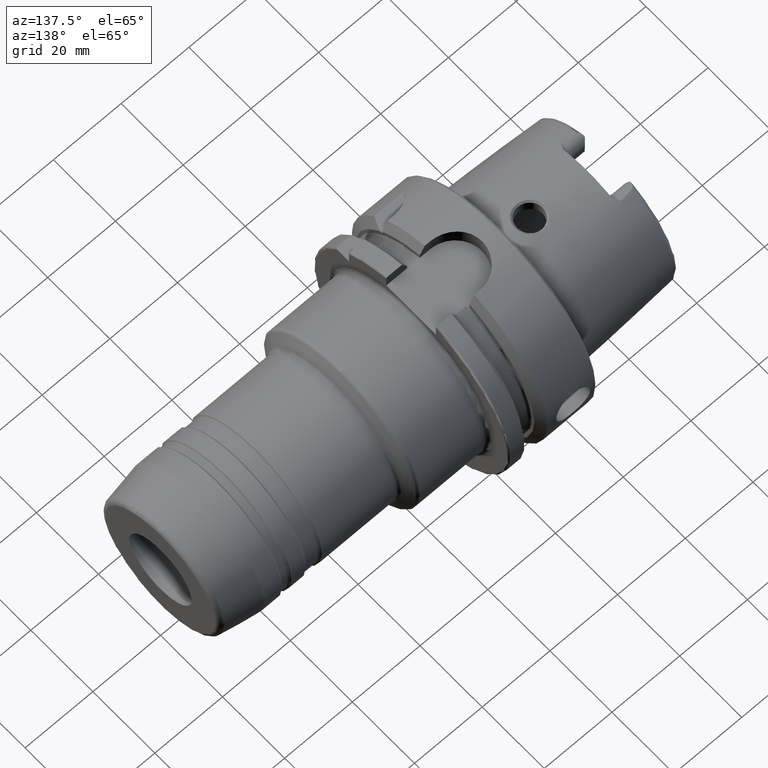
[diagram: clean part render]
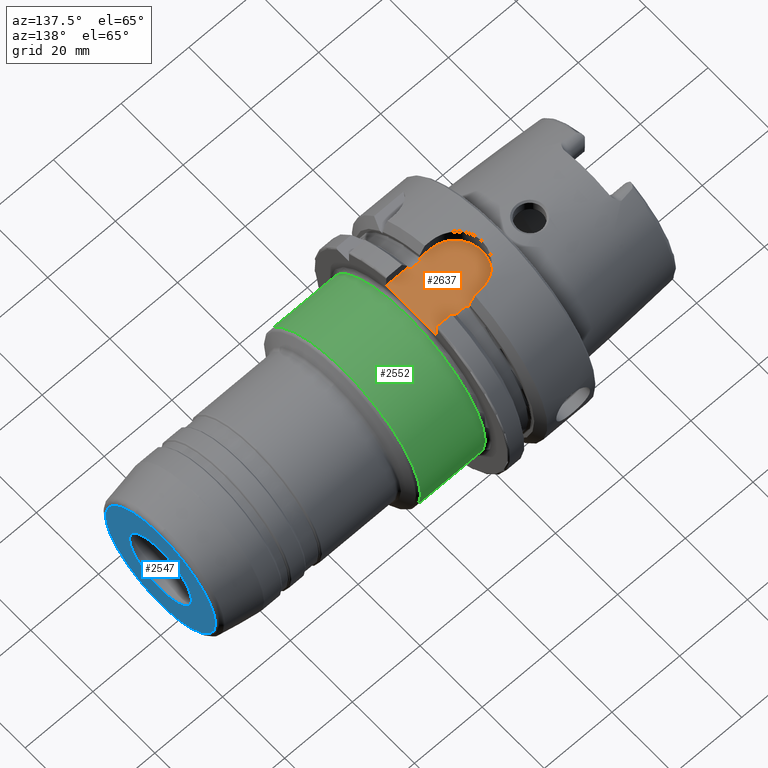
[diagram: same view with three faces highlighted in distinct colors, each labeled with its STEP entity id]
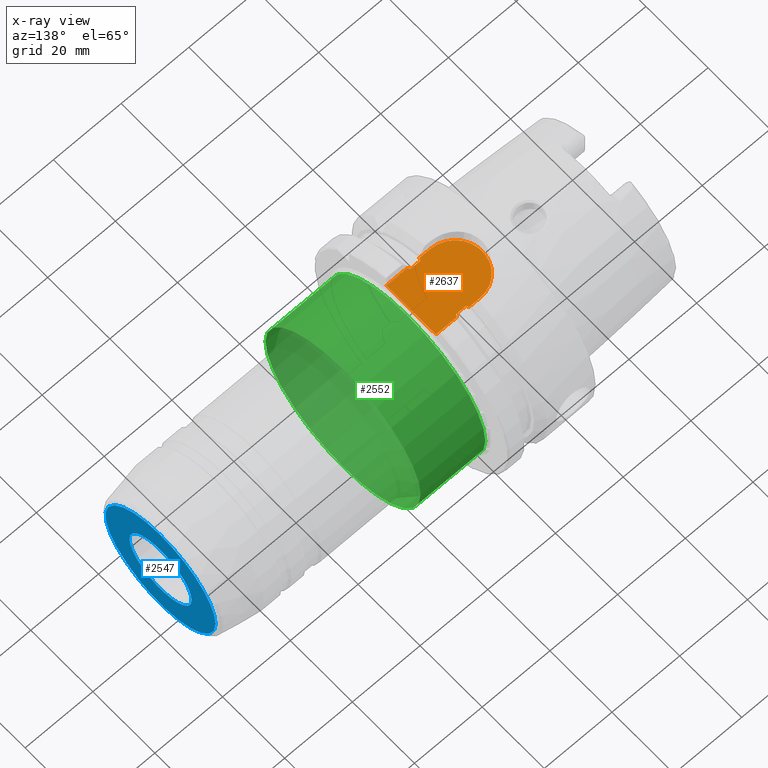
[diagram: x-ray of the same camera — body ghosted, the three highlighted faces saturated]
A machine part, auxiliary view with three faces highlighted in distinct colors.
The next image is the same camera in x-ray (body ghosted, the three faces saturated) — at least one of them is partly hidden behind the body in this view.
Their STEP definitions:

[orange] entity #2637 — the highlighted planar face has unit normal (0, 0, 1).
#76=B_SPLINE_CURVE_WITH_KNOTS('',3,(#5262,#5263,#5264,#5265,#5266,#5267,
#5268,#5269,#5270,#5271),.UNSPECIFIED.,.F.,.F.,(4,2,2,2,4),(0.252714277572707,
0.289228035148658,0.316691561230897,0.323545183976989,0.328785692776271),
 .UNSPECIFIED.);
#77=B_SPLINE_CURVE_WITH_KNOTS('',3,(#5277,#5278,#5279,#5280,#5281,#5282,
#5283,#5284,#5285,#5286),.UNSPECIFIED.,.F.,.F.,(4,2,2,2,4),(0.328785692776271,
0.334026201575553,0.340879824321645,0.368343350403883,0.404857107979834),
 .UNSPECIFIED.);
#80=B_SPLINE_CURVE_WITH_KNOTS('',3,(#5331,#5332,#5333,#5334,#5335,#5336,
#5337,#5338,#5339,#5340),.UNSPECIFIED.,.F.,.F.,(4,2,2,2,4),(0.32878569277627,
0.334026201575551,0.340879824321645,0.368343350403882,0.404857107979833),
 .UNSPECIFIED.);
#83=B_SPLINE_CURVE_WITH_KNOTS('',3,(#5357,#5358,#5359,#5360,#5361,#5362,
#5363,#5364,#5365,#5366),.UNSPECIFIED.,.F.,.F.,(4,2,2,2,4),(0.252714277572707,
0.289228035148658,0.316691561230896,0.323545183976989,0.32878569277627),
 .UNSPECIFIED.);
#194=PLANE('',#2970);
#300=FACE_OUTER_BOUND('',#443,.T.);
#443=EDGE_LOOP('',(#2272,#2273,#2274,#2275,#2276,#2277,#2278,#2279,#2280,
#2281,#2282,#2283));
#496=LINE('',#4039,#612);
#575=LINE('',#5316,#691);
#576=LINE('',#5321,#692);
#578=LINE('',#5370,#694);
#579=LINE('',#5373,#695);
#583=LINE('',#5405,#699);
#585=LINE('',#5408,#701);
#612=VECTOR('',#3200,10.);
#691=VECTOR('',#3673,10.);
#692=VECTOR('',#3680,10.);
#694=VECTOR('',#3698,10.);
#695=VECTOR('',#3701,10.);
#699=VECTOR('',#3711,10.);
#701=VECTOR('',#3715,10.);
#887=CIRCLE('',#2967,8.);
#990=VERTEX_POINT('',#4036);
#991=VERTEX_POINT('',#4038);
#1182=VERTEX_POINT('',#5254);
#1183=VERTEX_POINT('',#5261);
#1184=VERTEX_POINT('',#5274);
#1185=VERTEX_POINT('',#5276);
#1188=VERTEX_POINT('',#5315);
#1189=VERTEX_POINT('',#5319);
#1191=VERTEX_POINT('',#5330);
#1193=VERTEX_POINT('',#5350);
#1194=VERTEX_POINT('',#5372);
#1198=VERTEX_POINT('',#5401);
#1295=EDGE_CURVE('',#990,#991,#496,.T.);
#1552=EDGE_CURVE('',#1182,#1183,#76,.T.);
#1555=EDGE_CURVE('',#1184,#1185,#77,.T.);
#1563=EDGE_CURVE('',#1183,#1188,#575,.T.);
#1566=EDGE_CURVE('',#1189,#1184,#576,.T.);
#1569=EDGE_CURVE('',#1188,#1191,#80,.T.);
#1573=EDGE_CURVE('',#1193,#1189,#83,.T.);
#1575=EDGE_CURVE('',#1193,#991,#578,.T.);
#1576=EDGE_CURVE('',#1194,#1185,#579,.T.);
#1581=EDGE_CURVE('',#1198,#1194,#887,.T.);
#1583=EDGE_CURVE('',#990,#1191,#583,.T.);
#1585=EDGE_CURVE('',#1182,#1198,#585,.T.);
#2272=ORIENTED_EDGE('',*,*,#1555,.F.);
#2273=ORIENTED_EDGE('',*,*,#1566,.F.);
#2274=ORIENTED_EDGE('',*,*,#1573,.F.);
#2275=ORIENTED_EDGE('',*,*,#1575,.T.);
#2276=ORIENTED_EDGE('',*,*,#1295,.F.);
#2277=ORIENTED_EDGE('',*,*,#1583,.T.);
#2278=ORIENTED_EDGE('',*,*,#1569,.F.);
#2279=ORIENTED_EDGE('',*,*,#1563,.F.);
#2280=ORIENTED_EDGE('',*,*,#1552,.F.);
#2281=ORIENTED_EDGE('',*,*,#1585,.T.);
#2282=ORIENTED_EDGE('',*,*,#1581,.T.);
#2283=ORIENTED_EDGE('',*,*,#1576,.T.);
#2637=ADVANCED_FACE('',(#300),#194,.T.);
#2967=AXIS2_PLACEMENT_3D('',#5402,#3706,#3707);
#2970=AXIS2_PLACEMENT_3D('',#5409,#3716,#3717);
#3200=DIRECTION('',(0.,-1.,0.));
#3673=DIRECTION('',(1.,0.,0.));
#3680=DIRECTION('',(-1.,0.,0.));
#3698=DIRECTION('',(1.,3.41607084500048E-16,0.));
#3701=DIRECTION('',(1.,3.41607084500048E-16,0.));
#3706=DIRECTION('center_axis',(0.,0.,1.));
#3707=DIRECTION('ref_axis',(0.,1.,0.));
#3711=DIRECTION('',(-1.,-2.56205313375036E-16,0.));
#3715=DIRECTION('',(-1.,-2.56205313375036E-16,0.));
#3716=DIRECTION('center_axis',(0.,0.,1.));
#3717=DIRECTION('ref_axis',(1.,0.,0.));
#4036=CARTESIAN_POINT('',(26.,8.,26.5));
#4038=CARTESIAN_POINT('',(26.,-8.,26.5));
#4039=CARTESIAN_POINT('',(26.,5.55111512312578E-16,26.5));
#5254=CARTESIAN_POINT('',(16.2397987608563,8.,26.5));
#5261=CARTESIAN_POINT('',(16.625,7.34846922834952,26.5));
#5262=CARTESIAN_POINT('Ctrl Pts',(16.2397987608563,8.,26.5));
#5263=CARTESIAN_POINT('Ctrl Pts',(16.2699372185845,7.87398729043679,26.5));
#5264=CARTESIAN_POINT('Ctrl Pts',(16.3063113289614,7.75248496685372,26.5));
#5265=CARTESIAN_POINT('Ctrl Pts',(16.3906456489289,7.5566112023157,26.5));
#5266=CARTESIAN_POINT('Ctrl Pts',(16.4411490019356,7.4590543697872,26.5));
#5267=CARTESIAN_POINT('Ctrl Pts',(16.5270295504762,7.38349170057081,26.5));
#5268=CARTESIAN_POINT('Ctrl Pts',(16.5496994821687,7.36807649661538,26.5));
#5269=CARTESIAN_POINT('Ctrl Pts',(16.587038394856,7.35287762173868,26.5));
#5270=CARTESIAN_POINT('Ctrl Pts',(16.6075316373357,7.34846922834952,26.5));
#5271=CARTESIAN_POINT('Ctrl Pts',(16.625,7.34846922834952,26.5));
#5274=CARTESIAN_POINT('',(16.625,-7.34846922834952,26.5));
#5276=CARTESIAN_POINT('',(16.2397987608563,-8.,26.5));
#5277=CARTESIAN_POINT('Ctrl Pts',(16.625,-7.34846922834952,26.5));
#5278=CARTESIAN_POINT('Ctrl Pts',(16.6075316373357,-7.34846922834952,26.5));
#5279=CARTESIAN_POINT('Ctrl Pts',(16.587038394856,-7.35287762173868,26.5));
#5280=CARTESIAN_POINT('Ctrl Pts',(16.5496994821687,-7.36807649661538,26.5));
#5281=CARTESIAN_POINT('Ctrl Pts',(16.5270295504762,-7.38349170057081,26.5));
#5282=CARTESIAN_POINT('Ctrl Pts',(16.4411490019356,-7.4590543697872,26.5));
#5283=CARTESIAN_POINT('Ctrl Pts',(16.3906456489289,-7.5566112023157,26.5));
#5284=CARTESIAN_POINT('Ctrl Pts',(16.3063113289614,-7.75248496685372,26.5));
#5285=CARTESIAN_POINT('Ctrl Pts',(16.2699372185845,-7.87398729043679,26.5));
#5286=CARTESIAN_POINT('Ctrl Pts',(16.2397987608563,-8.,26.5));
#5315=CARTESIAN_POINT('',(19.375,7.34846922834952,26.5));
#5316=CARTESIAN_POINT('',(18.,7.34846922834952,26.5));
#5319=CARTESIAN_POINT('',(19.375,-7.34846922834952,26.5));
#5321=CARTESIAN_POINT('',(18.,-7.34846922834952,26.5));
#5330=CARTESIAN_POINT('',(19.7602012391437,8.,26.5));
#5331=CARTESIAN_POINT('Ctrl Pts',(19.375,7.34846922834952,26.5));
#5332=CARTESIAN_POINT('Ctrl Pts',(19.3924683626643,7.34846922834952,26.5));
#5333=CARTESIAN_POINT('Ctrl Pts',(19.412961605144,7.35287762173868,26.5));
#5334=CARTESIAN_POINT('Ctrl Pts',(19.4503005178313,7.36807649661538,26.5));
#5335=CARTESIAN_POINT('Ctrl Pts',(19.4729704495238,7.38349170057082,26.5));
#5336=CARTESIAN_POINT('Ctrl Pts',(19.5588509980644,7.45905436978721,26.5));
#5337=CARTESIAN_POINT('Ctrl Pts',(19.6093543510711,7.5566112023157,26.5));
#5338=CARTESIAN_POINT('Ctrl Pts',(19.6936886710386,7.75248496685372,26.5));
#5339=CARTESIAN_POINT('Ctrl Pts',(19.7300627814155,7.87398729043679,26.5));
#5340=CARTESIAN_POINT('Ctrl Pts',(19.7602012391437,8.,26.5));
#5350=CARTESIAN_POINT('',(19.7602012391437,-8.,26.5));
#5357=CARTESIAN_POINT('Ctrl Pts',(19.7602012391436,-8.,26.5));
#5358=CARTESIAN_POINT('Ctrl Pts',(19.7300627814155,-7.87398729043679,26.5));
#5359=CARTESIAN_POINT('Ctrl Pts',(19.6936886710386,-7.75248496685372,26.5));
#5360=CARTESIAN_POINT('Ctrl Pts',(19.6093543510711,-7.5566112023157,26.5));
#5361=CARTESIAN_POINT('Ctrl Pts',(19.5588509980644,-7.45905436978721,26.5));
#5362=CARTESIAN_POINT('Ctrl Pts',(19.4729704495238,-7.38349170057082,26.5));
#5363=CARTESIAN_POINT('Ctrl Pts',(19.4503005178313,-7.36807649661538,26.5));
#5364=CARTESIAN_POINT('Ctrl Pts',(19.412961605144,-7.35287762173868,26.5));
#5365=CARTESIAN_POINT('Ctrl Pts',(19.3924683626643,-7.34846922834952,26.5));
#5366=CARTESIAN_POINT('Ctrl Pts',(19.375,-7.34846922834952,26.5));
#5370=CARTESIAN_POINT('',(13.,-8.,26.5));
#5372=CARTESIAN_POINT('',(13.,-8.,26.5));
#5373=CARTESIAN_POINT('',(13.,-8.,26.5));
#5401=CARTESIAN_POINT('',(13.,8.,26.5));
#5402=CARTESIAN_POINT('Origin',(13.,0.,26.5));
#5405=CARTESIAN_POINT('',(26.,8.,26.5));
#5408=CARTESIAN_POINT('',(26.,8.,26.5));
#5409=CARTESIAN_POINT('Origin',(15.5,1.11022302462516E-15,26.5));

[blue] entity #2547 — the highlighted planar face has unit normal (1, 0, 0).
#152=FACE_BOUND('',#348,.T.);
#163=PLANE('',#2722);
#210=FACE_OUTER_BOUND('',#347,.T.);
#347=EDGE_LOOP('',(#1697,#1698));
#348=EDGE_LOOP('',(#1699,#1700));
#727=CIRCLE('',#2712,17.7413505532341);
#732=CIRCLE('',#2717,17.7413505532341);
#736=CIRCLE('',#2723,10.);
#737=CIRCLE('',#2724,10.);
#953=VERTEX_POINT('',#3946);
#954=VERTEX_POINT('',#3947);
#961=VERTEX_POINT('',#3966);
#962=VERTEX_POINT('',#3967);
#1250=EDGE_CURVE('',#953,#954,#727,.T.);
#1255=EDGE_CURVE('',#954,#953,#732,.T.);
#1260=EDGE_CURVE('',#961,#962,#736,.T.);
#1261=EDGE_CURVE('',#962,#961,#737,.T.);
#1697=ORIENTED_EDGE('',*,*,#1250,.F.);
#1698=ORIENTED_EDGE('',*,*,#1255,.F.);
#1699=ORIENTED_EDGE('',*,*,#1260,.F.);
#1700=ORIENTED_EDGE('',*,*,#1261,.F.);
#2547=ADVANCED_FACE('',(#210,#152),#163,.T.);
#2712=AXIS2_PLACEMENT_3D('',#3948,#3101,#3102);
#2717=AXIS2_PLACEMENT_3D('',#3956,#3111,#3112);
#2722=AXIS2_PLACEMENT_3D('',#3965,#3122,#3123);
#2723=AXIS2_PLACEMENT_3D('',#3968,#3124,#3125);
#2724=AXIS2_PLACEMENT_3D('',#3969,#3126,#3127);
#3101=DIRECTION('center_axis',(-1.,0.,0.));
#3102=DIRECTION('ref_axis',(0.,-1.,1.83697019872103E-16));
#3111=DIRECTION('center_axis',(-1.,0.,0.));
#3112=DIRECTION('ref_axis',(0.,-1.,1.83697019872103E-16));
#3122=DIRECTION('center_axis',(1.,0.,0.));
#3123=DIRECTION('ref_axis',(0.,0.,-1.));
#3124=DIRECTION('center_axis',(1.,0.,0.));
#3125=DIRECTION('ref_axis',(0.,0.,-1.));
#3126=DIRECTION('center_axis',(1.,0.,0.));
#3127=DIRECTION('ref_axis',(0.,0.,-1.));
#3946=CARTESIAN_POINT('',(100.,17.7413505532341,-5.43172204189231E-15));
#3947=CARTESIAN_POINT('',(100.,-2.17268881675692E-15,17.7413505532341));
#3948=CARTESIAN_POINT('Origin',(100.,0.,0.));
#3956=CARTESIAN_POINT('Origin',(100.,0.,0.));
#3965=CARTESIAN_POINT('Origin',(100.,10.,0.));
#3966=CARTESIAN_POINT('',(100.,10.,0.));
#3967=CARTESIAN_POINT('',(100.,-10.,-1.22464679914735E-15));
#3968=CARTESIAN_POINT('Origin',(100.,0.,0.));
#3969=CARTESIAN_POINT('Origin',(100.,0.,0.));

[green] entity #2552 — the highlighted cylindrical surface (bore or boss wall) has radius 25 mm, axis along (1, 0, 0).
#215=FACE_OUTER_BOUND('',#353,.T.);
#353=EDGE_LOOP('',(#1733,#1734,#1735,#1736,#1737,#1738,#1739,#1740));
#490=LINE('',#4010,#606);
#606=VECTOR('',#3174,25.);
#752=CIRCLE('',#2743,25.);
#753=CIRCLE('',#2744,25.);
#754=CIRCLE('',#2745,25.);
#755=CIRCLE('',#2747,25.);
#756=CIRCLE('',#2748,25.);
#757=CIRCLE('',#2749,25.);
#975=VERTEX_POINT('',#4001);
#976=VERTEX_POINT('',#4003);
#977=VERTEX_POINT('',#4005);
#978=VERTEX_POINT('',#4009);
#979=VERTEX_POINT('',#4011);
#980=VERTEX_POINT('',#4013);
#1278=EDGE_CURVE('',#975,#976,#752,.T.);
#1279=EDGE_CURVE('',#976,#977,#753,.T.);
#1280=EDGE_CURVE('',#977,#975,#754,.T.);
#1281=EDGE_CURVE('',#976,#978,#490,.T.);
#1282=EDGE_CURVE('',#979,#978,#755,.T.);
#1283=EDGE_CURVE('',#980,#979,#756,.T.);
#1284=EDGE_CURVE('',#978,#980,#757,.T.);
#1733=ORIENTED_EDGE('',*,*,#1280,.F.);
#1734=ORIENTED_EDGE('',*,*,#1279,.F.);
#1735=ORIENTED_EDGE('',*,*,#1281,.T.);
#1736=ORIENTED_EDGE('',*,*,#1282,.F.);
#1737=ORIENTED_EDGE('',*,*,#1283,.F.);
#1738=ORIENTED_EDGE('',*,*,#1284,.F.);
#1739=ORIENTED_EDGE('',*,*,#1281,.F.);
#1740=ORIENTED_EDGE('',*,*,#1278,.F.);
#2506=CYLINDRICAL_SURFACE('',#2746,25.);
#2552=ADVANCED_FACE('',(#215),#2506,.T.);
#2743=AXIS2_PLACEMENT_3D('',#4004,#3166,#3167);
#2744=AXIS2_PLACEMENT_3D('',#4006,#3168,#3169);
#2745=AXIS2_PLACEMENT_3D('',#4007,#3170,#3171);
#2746=AXIS2_PLACEMENT_3D('',#4008,#3172,#3173);
#2747=AXIS2_PLACEMENT_3D('',#4012,#3175,#3176);
#2748=AXIS2_PLACEMENT_3D('',#4014,#3177,#3178);
#2749=AXIS2_PLACEMENT_3D('',#4015,#3179,#3180);
#3166=DIRECTION('center_axis',(1.,0.,0.));
#3167=DIRECTION('ref_axis',(0.,-1.,1.83697019872103E-16));
#3168=DIRECTION('center_axis',(1.,0.,0.));
#3169=DIRECTION('ref_axis',(0.,-1.,1.83697019872103E-16));
#3170=DIRECTION('center_axis',(1.,0.,0.));
#3171=DIRECTION('ref_axis',(0.,-1.,1.83697019872103E-16));
#3172=DIRECTION('center_axis',(1.,0.,0.));
#3173=DIRECTION('ref_axis',(0.,1.,0.));
#3174=DIRECTION('',(-1.,0.,0.));
#3175=DIRECTION('center_axis',(-1.,0.,0.));
#3176=DIRECTION('ref_axis',(0.,-1.,-1.22464679914735E-16));
#3177=DIRECTION('center_axis',(-1.,0.,0.));
#3178=DIRECTION('ref_axis',(0.,-1.,-1.22464679914735E-16));
#3179=DIRECTION('center_axis',(-1.,0.,0.));
#3180=DIRECTION('ref_axis',(0.,-1.,-1.22464679914735E-16));
#4001=CARTESIAN_POINT('',(46.1132486540519,-3.06161699786838E-15,25.));
#4003=CARTESIAN_POINT('',(46.1132486540519,-25.,-3.06161699786838E-15));
#4004=CARTESIAN_POINT('Origin',(46.1132486540519,0.,0.));
#4005=CARTESIAN_POINT('',(46.1132486540519,25.,-1.53080849893419E-15));
#4006=CARTESIAN_POINT('Origin',(46.1132486540519,0.,0.));
#4007=CARTESIAN_POINT('Origin',(46.1132486540519,0.,0.));
#4008=CARTESIAN_POINT('Origin',(36.3452994616207,0.,0.));
#4009=CARTESIAN_POINT('',(27.,-25.,-3.06161699786838E-15));
#4010=CARTESIAN_POINT('',(36.3452994616207,-25.,-3.06161699786838E-15));
#4011=CARTESIAN_POINT('',(27.,-3.06161699786838E-15,-25.));
#4012=CARTESIAN_POINT('Origin',(27.,0.,0.));
#4013=CARTESIAN_POINT('',(27.,25.,0.));
#4014=CARTESIAN_POINT('Origin',(27.,0.,0.));
#4015=CARTESIAN_POINT('Origin',(27.,0.,0.));